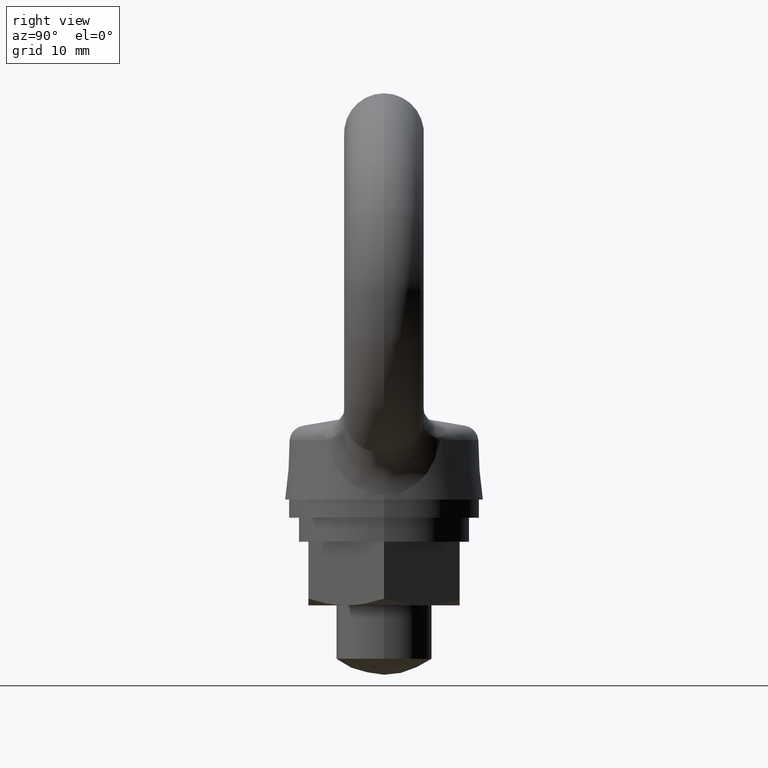
[diagram: clean part render]
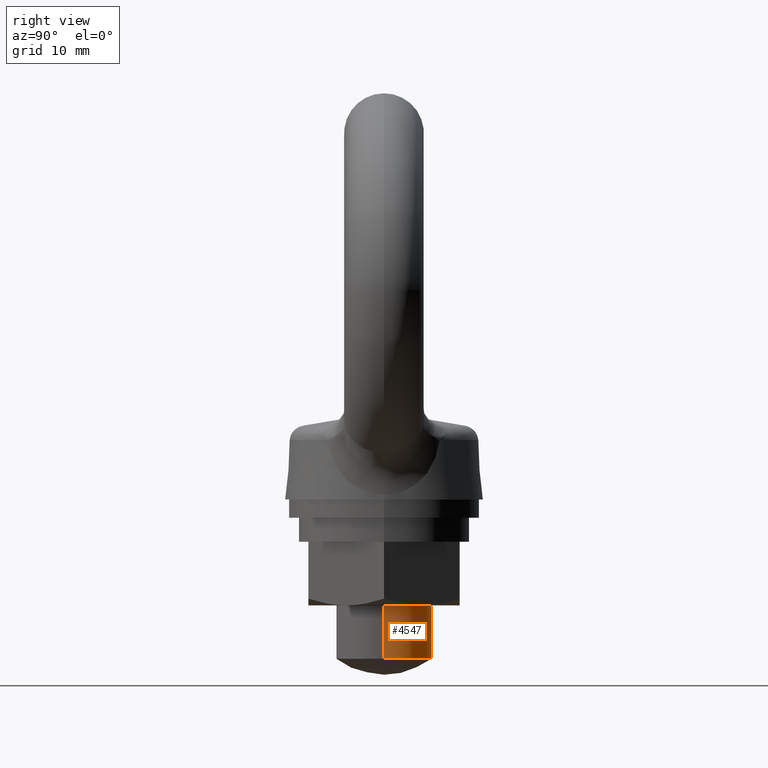
[diagram: same view with one face highlighted and labeled with its STEP entity id]
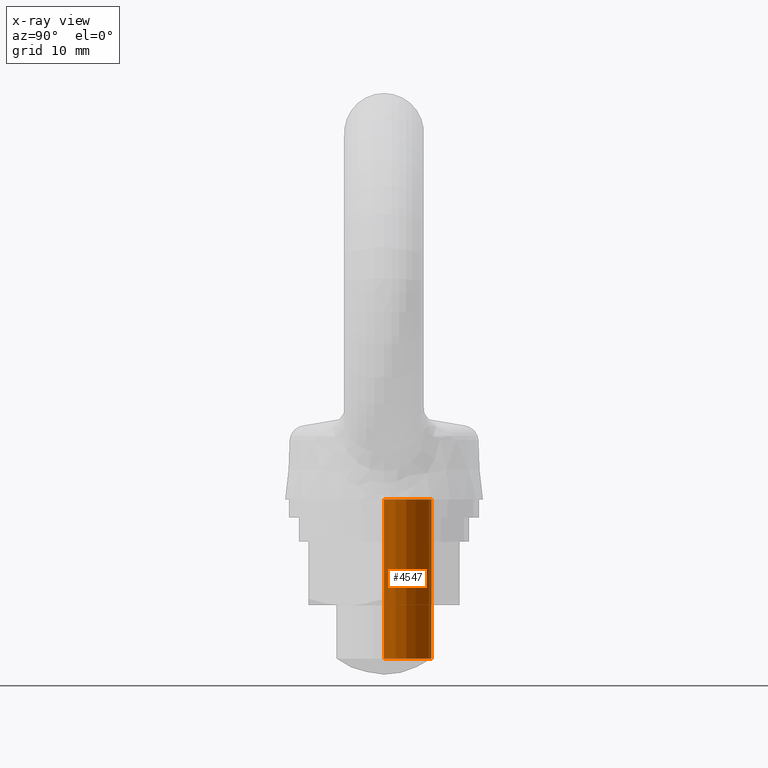
[diagram: x-ray of the same camera — body ghosted, the highlighted face saturated]
A machine part, right view. The second image highlights one B-rep face of the part: STEP entity #4547.
The next image is the same camera in x-ray: the body ghosted, the highlighted face saturated — about 0% of this face is hidden behind the body in this view.
In plain terms, the highlighted cylindrical surface (partial cylindrical patch) has radius 6 mm, axis along (0, 0, 1).
Its self-contained STEP definition (entity closure, byte-faithful):
#1831 = CARTESIAN_POINT ( 'NONE',  ( 6.000000747581179200, 0.0000000000000000000, -45.99999943931409500 ) ) ;
#1832 = CARTESIAN_POINT ( 'NONE',  ( -6.000000747581179200, 7.347639038426926500E-016, -45.99999943931409500 ) ) ;
#3132 = DIRECTION ( 'NONE',  ( 1.000000000000000000, 0.0000000000000000000, 0.0000000000000000000 ) ) ;
#3133 = DIRECTION ( 'NONE',  ( 0.0000000000000000000, 0.0000000000000000000, 1.000000000000000000 ) ) ;
#3134 = AXIS2_PLACEMENT_3D ( 'NONE', #3137, #3133, #3132 ) ;
#3135 = CYLINDRICAL_SURFACE ( 'NONE', #3134, 6.000000000000000000 ) ;
#3137 = CARTESIAN_POINT ( 'NONE',  ( 0.0000000000000000000, 0.0000000000000000000, -1026.000000000000000 ) ) ;
#3254 = FACE_OUTER_BOUND ( 'NONE', #4548, .T. ) ;
#4392 = EDGE_CURVE ( 'NONE', #4558, #4559, #8007, .T. ) ;
#4427 = ORIENTED_EDGE ( 'NONE', *, *, #4428, .T. ) ;
#4428 = EDGE_CURVE ( 'NONE', #4558, #4429, #8217, .T. ) ;
#4429 = VERTEX_POINT ( 'NONE', #8213 ) ;
#4430 = ORIENTED_EDGE ( 'NONE', *, *, #4431, .T. ) ;
#4431 = EDGE_CURVE ( 'NONE', #4429, #4432, #8242, .T. ) ;
#4432 = VERTEX_POINT ( 'NONE', #8294 ) ;
#4433 = ORIENTED_EDGE ( 'NONE', *, *, #4434, .F. ) ;
#4434 = EDGE_CURVE ( 'NONE', #4559, #4432, #8293, .T. ) ;
#4547 = ADVANCED_FACE ( 'NONE', ( #3254 ), #3135, .T. ) ;
#4548 = EDGE_LOOP ( 'NONE', ( #4549, #4427, #4430, #4433 ) ) ;
#4549 = ORIENTED_EDGE ( 'NONE', *, *, #4392, .F. ) ;
#4558 = VERTEX_POINT ( 'NONE', #1832 ) ;
#4559 = VERTEX_POINT ( 'NONE', #1831 ) ;
#8003 = DIRECTION ( 'NONE',  ( -1.000000000000000000, 0.0000000000000000000, 0.0000000000000000000 ) ) ;
#8004 = DIRECTION ( 'NONE',  ( 0.0000000000000000000, 0.0000000000000000000, -1.000000000000000000 ) ) ;
#8005 = CARTESIAN_POINT ( 'NONE',  ( 0.0000000000000000000, 0.0000000000000000000, -45.99999943931409500 ) ) ;
#8006 = AXIS2_PLACEMENT_3D ( 'NONE', #8005, #8004, #8003 ) ;
#8007 = CIRCLE ( 'NONE', #8006, 6.000000747581179200 ) ;
#8213 = CARTESIAN_POINT ( 'NONE',  ( -6.000000000000000000, 7.347638122934263500E-016, -26.00000000000000000 ) ) ;
#8214 = DIRECTION ( 'NONE',  ( 0.0000000000000000000, 0.0000000000000000000, 1.000000000000000000 ) ) ;
#8215 = VECTOR ( 'NONE', #8214, 1000.000000000000000 ) ;
#8216 = CARTESIAN_POINT ( 'NONE',  ( -6.000000000000000000, 7.347638122934263500E-016, -1026.000000000000000 ) ) ;
#8217 = LINE ( 'NONE', #8216, #8215 ) ;
#8238 = DIRECTION ( 'NONE',  ( 1.000000000000000000, 0.0000000000000000000, 0.0000000000000000000 ) ) ;
#8239 = DIRECTION ( 'NONE',  ( 0.0000000000000000000, 0.0000000000000000000, -1.000000000000000000 ) ) ;
#8240 = CARTESIAN_POINT ( 'NONE',  ( 0.0000000000000000000, 0.0000000000000000000, -26.00000000000000000 ) ) ;
#8241 = AXIS2_PLACEMENT_3D ( 'NONE', #8240, #8239, #8238 ) ;
#8242 = CIRCLE ( 'NONE', #8241, 6.000000000000000000 ) ;
#8290 = DIRECTION ( 'NONE',  ( 0.0000000000000000000, 0.0000000000000000000, 1.000000000000000000 ) ) ;
#8291 = VECTOR ( 'NONE', #8290, 1000.000000000000000 ) ;
#8292 = CARTESIAN_POINT ( 'NONE',  ( 6.000000000000000000, 0.0000000000000000000, -1026.000000000000000 ) ) ;
#8293 = LINE ( 'NONE', #8292, #8291 ) ;
#8294 = CARTESIAN_POINT ( 'NONE',  ( 6.000000000000000000, 0.0000000000000000000, -26.00000000000000000 ) ) ;